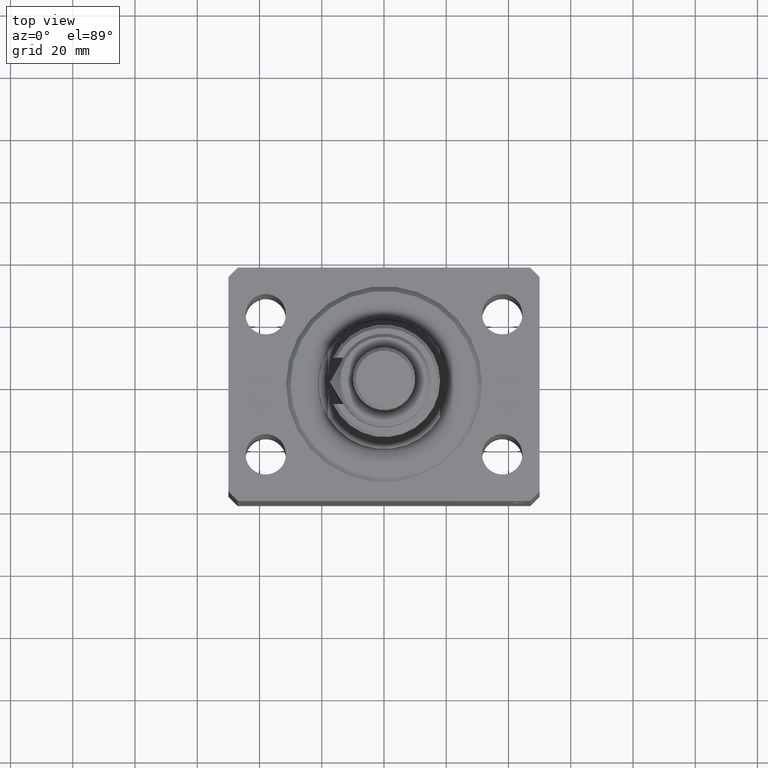
[diagram: clean part render]
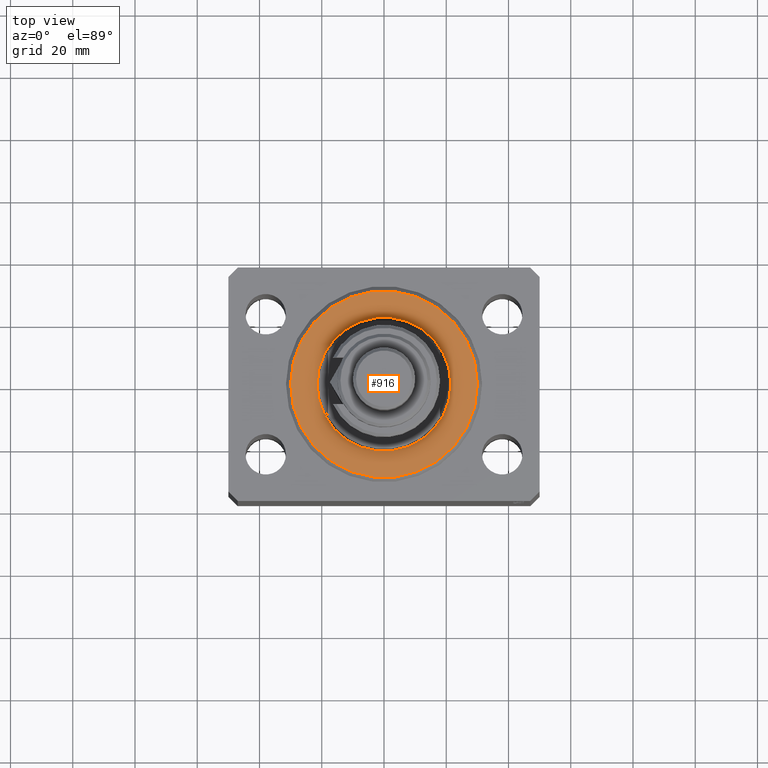
[diagram: same view with one face highlighted and labeled with its STEP entity id]
A machine part, top view. The second image highlights one B-rep face of the part: STEP entity #916.
In plain terms, the highlighted planar face has unit normal (0, 0, -1).
Its self-contained STEP definition (entity closure, byte-faithful):
#916 = ADVANCED_FACE ( 'NONE', ( #16155, #38189 ), #5342, .F. ) ;
#1110 = VERTEX_POINT ( 'NONE', #14910 ) ;
#2947 = CIRCLE ( 'NONE', #45066, 21.50000000000000000 ) ;
#5342 = PLANE ( 'NONE',  #47135 ) ;
#5394 = DIRECTION ( 'NONE',  ( -0.000000000000000000, -0.000000000000000000, -1.000000000000000000 ) ) ;
#6650 = ORIENTED_EDGE ( 'NONE', *, *, #30109, .T. ) ;
#8548 = AXIS2_PLACEMENT_3D ( 'NONE', #27583, #23999, #37888 ) ;
#8795 = EDGE_LOOP ( 'NONE', ( #29986, #6650 ) ) ;
#9744 = ORIENTED_EDGE ( 'NONE', *, *, #46942, .T. ) ;
#13096 = CARTESIAN_POINT ( 'NONE',  ( 0.000000000000000000, 0.000000000000000000, 0.000000000000000000 ) ) ;
#13233 = AXIS2_PLACEMENT_3D ( 'NONE', #21192, #20260, #39160 ) ;
#13440 = VERTEX_POINT ( 'NONE', #31086 ) ;
#13556 = DIRECTION ( 'NONE',  ( 1.000000000000000000, 0.000000000000000000, 0.000000000000000000 ) ) ;
#14910 = CARTESIAN_POINT ( 'NONE',  ( -29.99999999999999289, 3.765788907378110539E-15, 0.000000000000000000 ) ) ;
#16155 = FACE_BOUND ( 'NONE', #22880, .T. ) ;
#18464 = AXIS2_PLACEMENT_3D ( 'NONE', #38238, #5394, #13556 ) ;
#19990 = CARTESIAN_POINT ( 'NONE',  ( 0.000000000000000000, 0.000000000000000000, 0.000000000000000000 ) ) ;
#20260 = DIRECTION ( 'NONE',  ( -0.000000000000000000, -0.000000000000000000, -1.000000000000000000 ) ) ;
#21192 = CARTESIAN_POINT ( 'NONE',  ( 0.000000000000000000, 0.000000000000000000, 0.000000000000000000 ) ) ;
#22144 = VERTEX_POINT ( 'NONE', #23416 ) ;
#22167 = EDGE_CURVE ( 'NONE', #22144, #13440, #2947, .T. ) ;
#22330 = CIRCLE ( 'NONE', #8548, 21.50000000000000000 ) ;
#22880 = EDGE_LOOP ( 'NONE', ( #42506, #9744 ) ) ;
#23416 = CARTESIAN_POINT ( 'NONE',  ( 21.50000000000000000, 0.000000000000000000, -2.168404344971008868E-16 ) ) ;
#23999 = DIRECTION ( 'NONE',  ( 0.000000000000000000, 0.000000000000000000, 1.000000000000000000 ) ) ;
#27583 = CARTESIAN_POINT ( 'NONE',  ( 0.000000000000000000, 0.000000000000000000, 0.000000000000000000 ) ) ;
#29986 = ORIENTED_EDGE ( 'NONE', *, *, #37667, .T. ) ;
#30109 = EDGE_CURVE ( 'NONE', #1110, #38024, #36087, .T. ) ;
#30620 = DIRECTION ( 'NONE',  ( 0.000000000000000000, 0.000000000000000000, 1.000000000000000000 ) ) ;
#31022 = DIRECTION ( 'NONE',  ( 1.000000000000000000, 0.000000000000000000, -0.000000000000000000 ) ) ;
#31086 = CARTESIAN_POINT ( 'NONE',  ( -21.50000000000000000, 2.632990618166809630E-15, -2.168404344971008868E-16 ) ) ;
#31694 = CARTESIAN_POINT ( 'NONE',  ( 29.99999999999999289, 0.000000000000000000, 0.000000000000000000 ) ) ;
#32395 = CIRCLE ( 'NONE', #13233, 29.99999999999999289 ) ;
#36087 = CIRCLE ( 'NONE', #18464, 29.99999999999999289 ) ;
#37667 = EDGE_CURVE ( 'NONE', #38024, #1110, #32395, .T. ) ;
#37888 = DIRECTION ( 'NONE',  ( 1.000000000000000000, 0.000000000000000000, 0.000000000000000000 ) ) ;
#38024 = VERTEX_POINT ( 'NONE', #31694 ) ;
#38189 = FACE_OUTER_BOUND ( 'NONE', #8795, .T. ) ;
#38238 = CARTESIAN_POINT ( 'NONE',  ( 0.000000000000000000, 0.000000000000000000, 0.000000000000000000 ) ) ;
#39160 = DIRECTION ( 'NONE',  ( 1.000000000000000000, 0.000000000000000000, 0.000000000000000000 ) ) ;
#42506 = ORIENTED_EDGE ( 'NONE', *, *, #22167, .T. ) ;
#45066 = AXIS2_PLACEMENT_3D ( 'NONE', #13096, #30620, #45234 ) ;
#45234 = DIRECTION ( 'NONE',  ( 1.000000000000000000, 0.000000000000000000, 0.000000000000000000 ) ) ;
#45639 = DIRECTION ( 'NONE',  ( 0.000000000000000000, 0.000000000000000000, 1.000000000000000000 ) ) ;
#46942 = EDGE_CURVE ( 'NONE', #13440, #22144, #22330, .T. ) ;
#47135 = AXIS2_PLACEMENT_3D ( 'NONE', #19990, #45639, #31022 ) ;